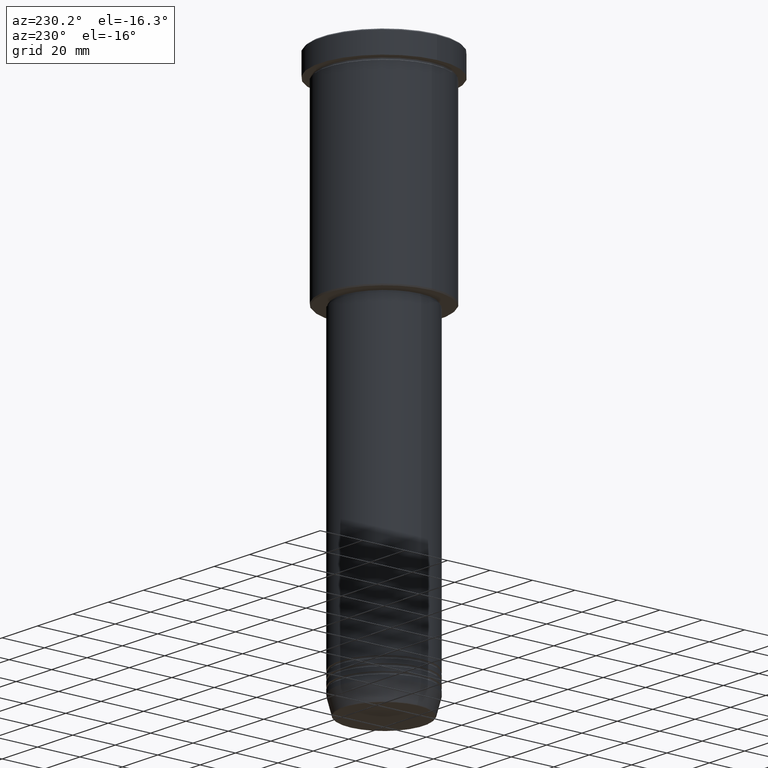
[diagram: clean part render]
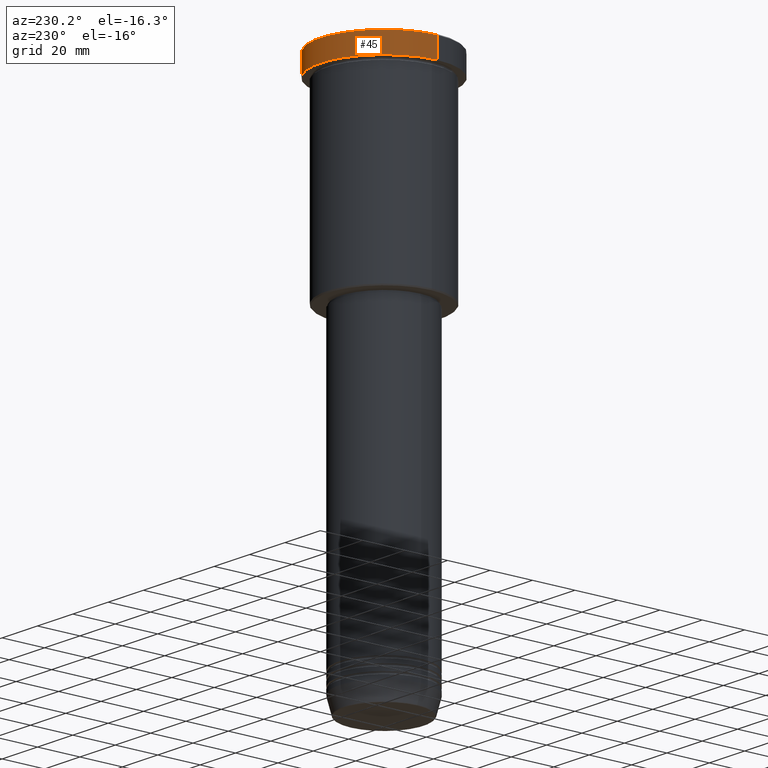
[diagram: same view with one face highlighted and labeled with its STEP entity id]
A machine part, auxiliary view. The second image highlights one B-rep face of the part: STEP entity #45.
In plain terms, the highlighted cylindrical surface (partial cylindrical patch) has radius 30 mm, axis along (-0, -0, 1).
Its self-contained STEP definition (entity closure, byte-faithful):
#36 = DIRECTION ( 'NONE',  ( 0.000000000000000000, 0.000000000000000000, -1.000000000000000000 ) ) ;
#45 = ADVANCED_FACE ( 'NONE', ( #1039 ), #497, .T. ) ;
#56 = CARTESIAN_POINT ( 'NONE',  ( -30.00000000000000000, 3.673940397442059178E-15, -9.999999999999992895 ) ) ;
#107 = CIRCLE ( 'NONE', #400, 30.00000000000000000 ) ;
#148 = AXIS2_PLACEMENT_3D ( 'NONE', #784, #216, #588 ) ;
#170 = LINE ( 'NONE', #255, #632 ) ;
#216 = DIRECTION ( 'NONE',  ( -0.000000000000000000, -0.000000000000000000, 1.000000000000000000 ) ) ;
#237 = VERTEX_POINT ( 'NONE', #1075 ) ;
#255 = CARTESIAN_POINT ( 'NONE',  ( 30.00000000000000000, 0.000000000000000000, 0.000000000000000000 ) ) ;
#261 = DIRECTION ( 'NONE',  ( -0.000000000000000000, -0.000000000000000000, 1.000000000000000000 ) ) ;
#263 = ORIENTED_EDGE ( 'NONE', *, *, #545, .F. ) ;
#314 = DIRECTION ( 'NONE',  ( 1.000000000000000000, 0.000000000000000000, 0.000000000000000000 ) ) ;
#396 = LINE ( 'NONE', #682, #977 ) ;
#400 = AXIS2_PLACEMENT_3D ( 'NONE', #740, #941, #475 ) ;
#475 = DIRECTION ( 'NONE',  ( 1.000000000000000000, 0.000000000000000000, 0.000000000000000000 ) ) ;
#497 = CYLINDRICAL_SURFACE ( 'NONE', #148, 30.00000000000000000 ) ;
#504 = DIRECTION ( 'NONE',  ( -0.000000000000000000, -0.000000000000000000, 1.000000000000000000 ) ) ;
#545 = EDGE_CURVE ( 'NONE', #771, #237, #170, .T. ) ;
#588 = DIRECTION ( 'NONE',  ( 1.000000000000000000, 0.000000000000000000, 0.000000000000000000 ) ) ;
#615 = ORIENTED_EDGE ( 'NONE', *, *, #1112, .T. ) ;
#629 = AXIS2_PLACEMENT_3D ( 'NONE', #969, #36, #314 ) ;
#632 = VECTOR ( 'NONE', #261, 1000.000000000000000 ) ;
#682 = CARTESIAN_POINT ( 'NONE',  ( -30.00000000000000000, 3.673940397442059178E-15, 0.000000000000000000 ) ) ;
#706 = EDGE_LOOP ( 'NONE', ( #615, #838, #961, #263 ) ) ;
#740 = CARTESIAN_POINT ( 'NONE',  ( 0.000000000000000000, 0.000000000000000000, -9.999999999999992895 ) ) ;
#765 = EDGE_CURVE ( 'NONE', #1050, #237, #1160, .T. ) ;
#771 = VERTEX_POINT ( 'NONE', #1134 ) ;
#780 = VERTEX_POINT ( 'NONE', #56 ) ;
#784 = CARTESIAN_POINT ( 'NONE',  ( 0.000000000000000000, 0.000000000000000000, 0.000000000000000000 ) ) ;
#838 = ORIENTED_EDGE ( 'NONE', *, *, #1177, .T. ) ;
#847 = CARTESIAN_POINT ( 'NONE',  ( -30.00000000000000000, 3.673940397442059178E-15, -0.5000000000000073275 ) ) ;
#941 = DIRECTION ( 'NONE',  ( -0.000000000000000000, -0.000000000000000000, 1.000000000000000000 ) ) ;
#961 = ORIENTED_EDGE ( 'NONE', *, *, #765, .T. ) ;
#969 = CARTESIAN_POINT ( 'NONE',  ( 0.000000000000000000, 0.000000000000000000, -0.5000000000000073275 ) ) ;
#977 = VECTOR ( 'NONE', #504, 1000.000000000000000 ) ;
#1039 = FACE_OUTER_BOUND ( 'NONE', #706, .T. ) ;
#1050 = VERTEX_POINT ( 'NONE', #847 ) ;
#1075 = CARTESIAN_POINT ( 'NONE',  ( 30.00000000000000000, 0.000000000000000000, -0.5000000000000073275 ) ) ;
#1112 = EDGE_CURVE ( 'NONE', #771, #780, #107, .T. ) ;
#1134 = CARTESIAN_POINT ( 'NONE',  ( 30.00000000000000000, 0.000000000000000000, -9.999999999999992895 ) ) ;
#1160 = CIRCLE ( 'NONE', #629, 30.00000000000000000 ) ;
#1177 = EDGE_CURVE ( 'NONE', #780, #1050, #396, .T. ) ;